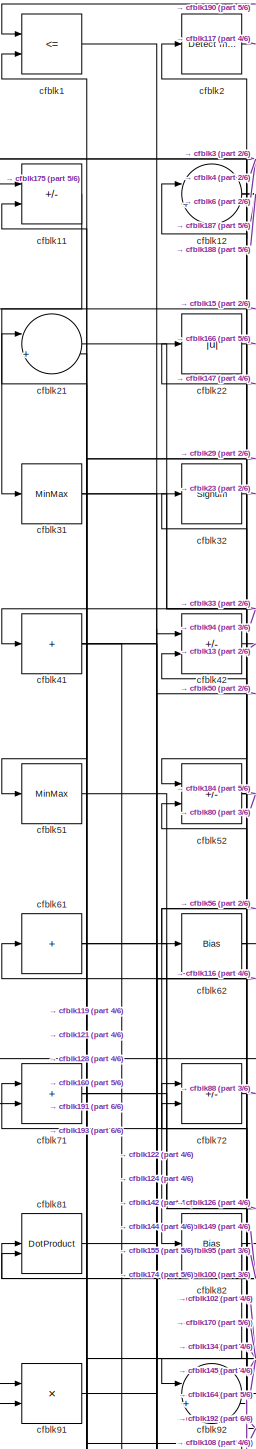
[diagram: root canvas - part 1/6, top left region]
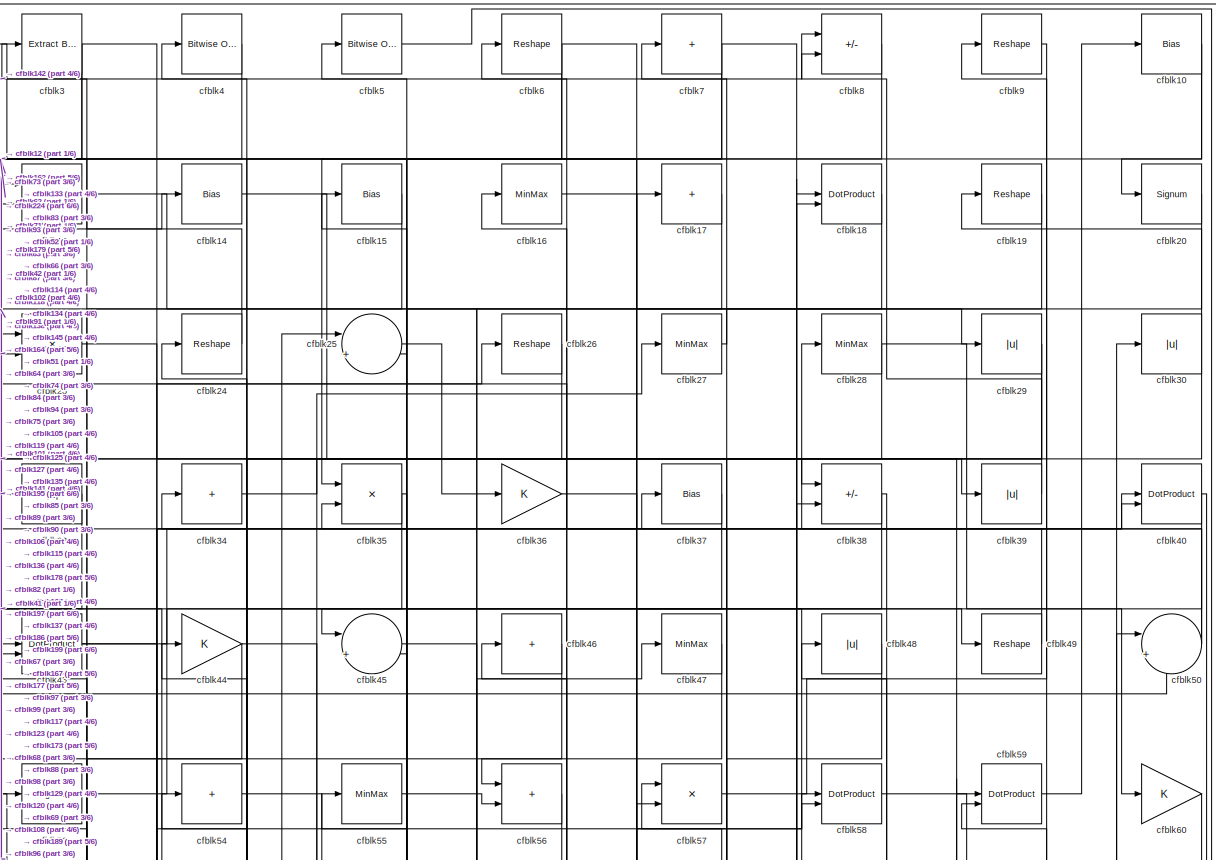
[diagram: root canvas - part 2/6, full width, top band]
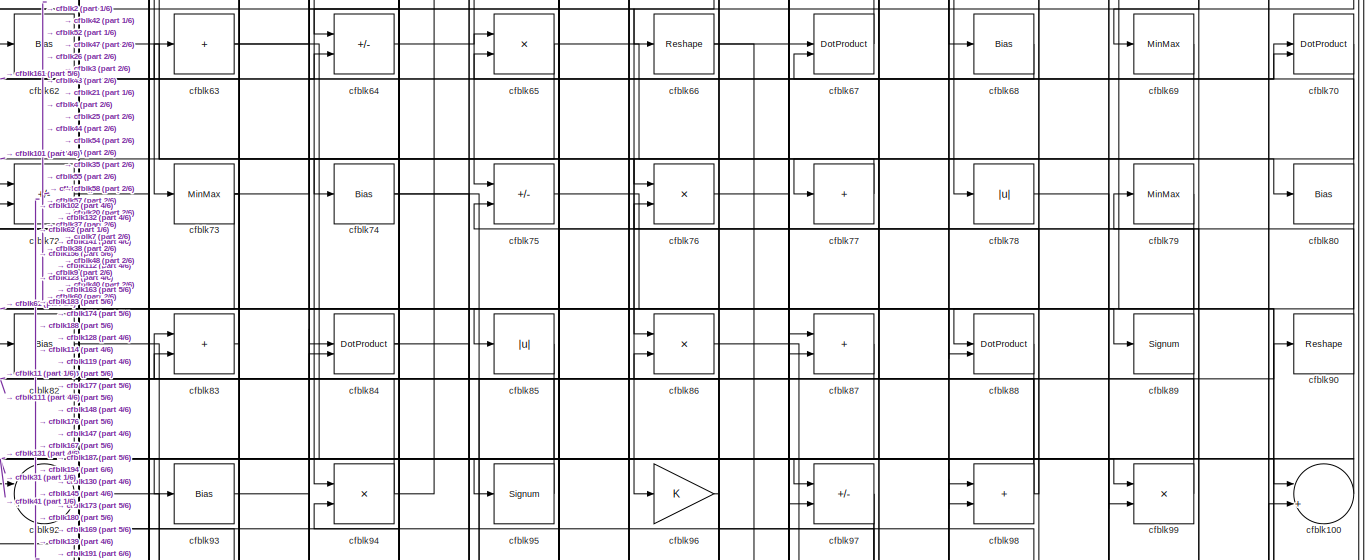
[diagram: root canvas - part 3/6, full width, middle band]
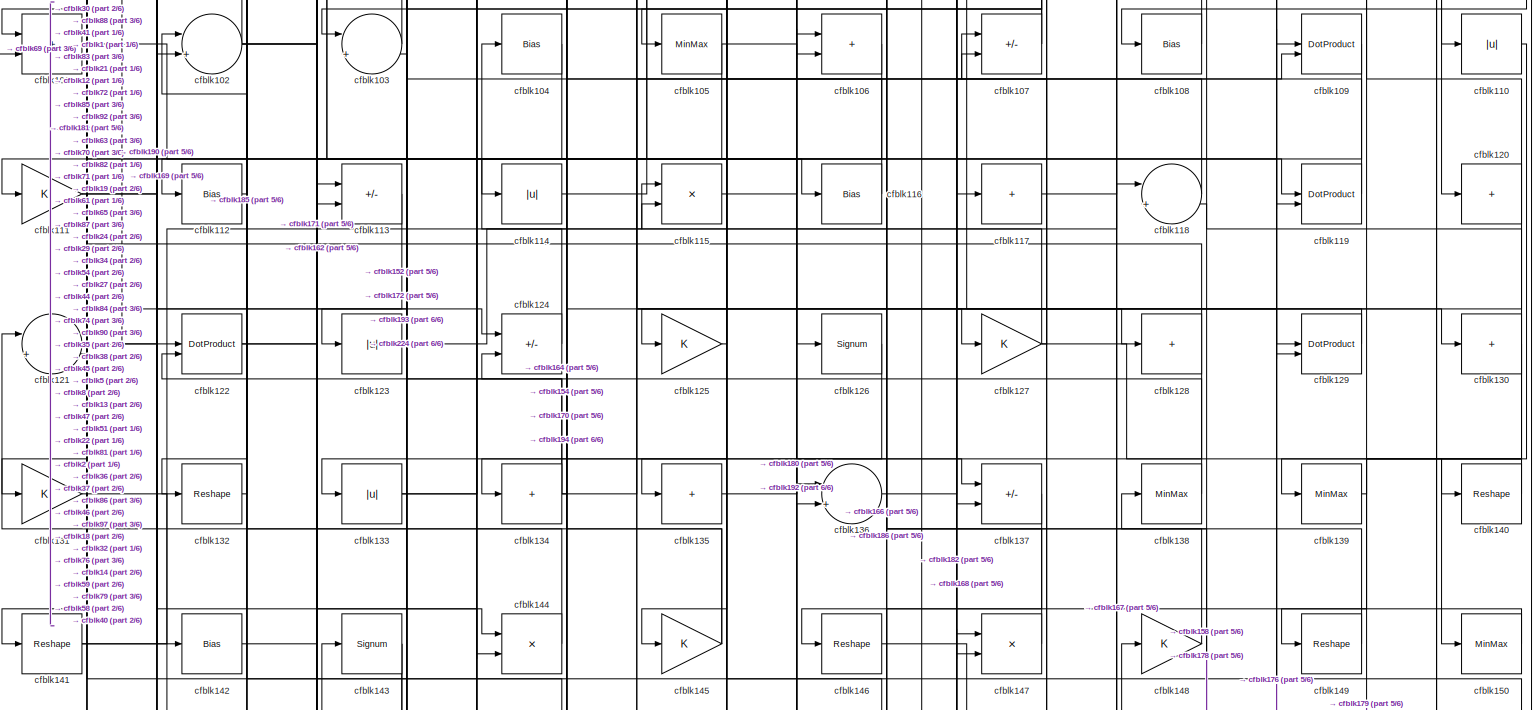
[diagram: root canvas - part 4/6, full width, middle band]
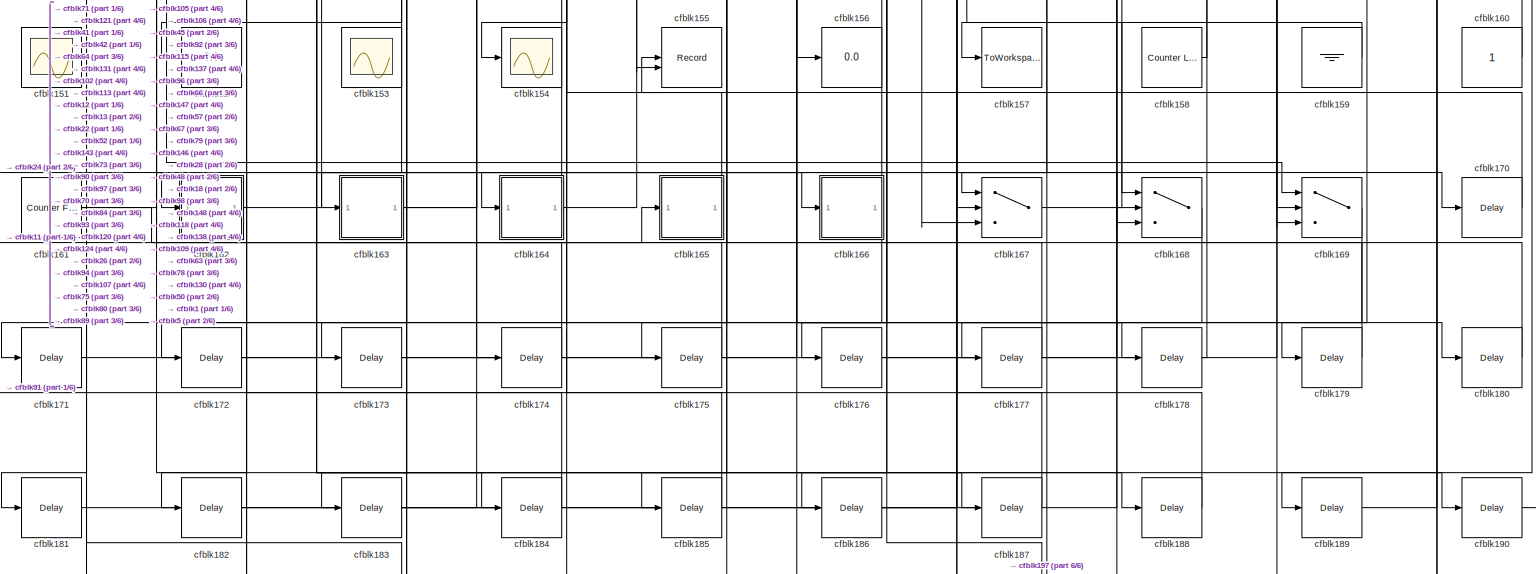
[diagram: root canvas - part 5/6, full width, bottom band]
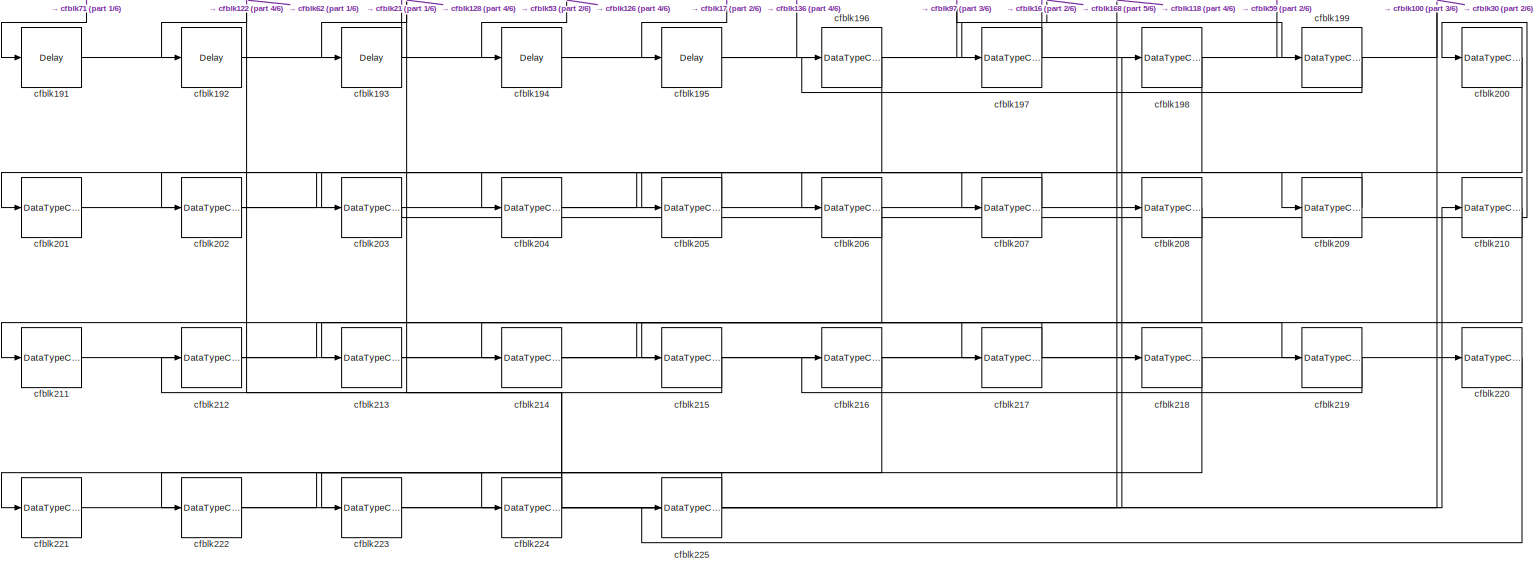
[diagram: root canvas - part 6/6, full width, bottom band]
MODEL slx_ad679ab97dcf
KIND model
CONFIG AbsTol = auto
CONFIG EnableMultiTasking = off
CONFIG FixedStep = auto
CONFIG MaxStep = auto
CONFIG MinStep = auto
CONFIG RelTol = 1e-3
CONFIG SampleTimeConstraint = Unconstrained
CONFIG SolverName = VariableStepAuto
CONFIG StartTime = 0.0
CONFIG StopTime = 10.0
BLOCK [RelationalOperator] cfblk1
  InputSameDT = off
  Operator = <=
  OutDataTypeStr = boolean
BLOCK [Bias] cfblk10
  Bias = 0.0
  SaturateOnIntegerOverflow = off
BLOCK [Sum] cfblk100
  Inputs = |++
BLOCK [Sum] cfblk101
  IconShape = rectangular
BLOCK [Sum] cfblk102
  Inputs = |++
BLOCK [Sum] cfblk103
  Inputs = |++
BLOCK [Bias] cfblk104
  Bias = 0.0
  SaturateOnIntegerOverflow = off
BLOCK [MinMax] cfblk105
BLOCK [Sum] cfblk106
  IconShape = rectangular
BLOCK [Sum] cfblk107
  IconShape = rectangular
  Inputs = +-
BLOCK [Bias] cfblk108
  Bias = 0.0
  SaturateOnIntegerOverflow = off
BLOCK [DotProduct] cfblk109
  OutDataTypeStr = Inherit: Inherit via internal rule
BLOCK [Sum] cfblk11
  IconShape = rectangular
  Inputs = +-
BLOCK [Abs] cfblk110
  SaturateOnIntegerOverflow = off
BLOCK [Gain] cfblk111
BLOCK [Bias] cfblk112
  Bias = 0.0
  SaturateOnIntegerOverflow = off
BLOCK [Sum] cfblk113
  IconShape = rectangular
  Inputs = +-
BLOCK [Abs] cfblk114
  SaturateOnIntegerOverflow = off
BLOCK [Product] cfblk115
  Inputs = */
  RndMeth = Zero
  SaturateOnIntegerOverflow = on
BLOCK [Bias] cfblk116
  Bias = 0.0
  SaturateOnIntegerOverflow = off
BLOCK [Sum] cfblk117
  IconShape = rectangular
  Inputs = +
BLOCK [Sum] cfblk118
  Inputs = |++
BLOCK [DotProduct] cfblk119
  OutDataTypeStr = Inherit: Inherit via internal rule
BLOCK [Sum] cfblk12
  Inputs = |++
BLOCK [Sum] cfblk120
  IconShape = rectangular
  Inputs = +
BLOCK [Sum] cfblk121
  Inputs = |++
BLOCK [DotProduct] cfblk122
  OutDataTypeStr = Inherit: Inherit via internal rule
BLOCK [Abs] cfblk123
  SaturateOnIntegerOverflow = off
BLOCK [Sum] cfblk124
  IconShape = rectangular
  Inputs = +-
BLOCK [Gain] cfblk125
BLOCK [Signum] cfblk126
BLOCK [Gain] cfblk127
BLOCK [Sum] cfblk128
  IconShape = rectangular
  Inputs = +
BLOCK [DotProduct] cfblk129
  OutDataTypeStr = Inherit: Inherit via internal rule
BLOCK [Product] cfblk13
  Inputs = */
  RndMeth = Zero
  SaturateOnIntegerOverflow = on
BLOCK [Sum] cfblk130
  IconShape = rectangular
  Inputs = +
BLOCK [Gain] cfblk131
BLOCK [Reshape] cfblk132
BLOCK [Abs] cfblk133
  SaturateOnIntegerOverflow = off
BLOCK [Sum] cfblk134
  IconShape = rectangular
  Inputs = +
BLOCK [Sum] cfblk135
  IconShape = rectangular
  Inputs = +
BLOCK [Sum] cfblk136
  Inputs = |++
BLOCK [Sum] cfblk137
  IconShape = rectangular
  Inputs = +-
BLOCK [MinMax] cfblk138
BLOCK [MinMax] cfblk139
BLOCK [Bias] cfblk14
  Bias = 0.0
  SaturateOnIntegerOverflow = off
BLOCK [Reshape] cfblk140
BLOCK [Reshape] cfblk141
BLOCK [Bias] cfblk142
  Bias = 0.0
  SaturateOnIntegerOverflow = off
BLOCK [Signum] cfblk143
BLOCK [Product] cfblk144
  Inputs = */
  RndMeth = Zero
  SaturateOnIntegerOverflow = on
BLOCK [Gain] cfblk145
BLOCK [Reshape] cfblk146
BLOCK [Product] cfblk147
  Inputs = */
  RndMeth = Zero
  SaturateOnIntegerOverflow = on
BLOCK [Gain] cfblk148
BLOCK [Reshape] cfblk149
BLOCK [Bias] cfblk15
  Bias = 0.0
  SaturateOnIntegerOverflow = off
BLOCK [MinMax] cfblk150
BLOCK [Scope] cfblk151
  Floating = on
  NumInputPorts = 1
  ScopeSpecificationString = Simulink.scopes.TimeScopeBlockCfg('CurrentConfiguration', extmgr.ConfigurationSet(extmgr.Configuration('Core','General UI',true,'FigureColor',[0.156862745098039 0.156862745098039 0.156862745098039]),extmgr.Configuration('Core','Source UI',true),extmgr.Configuration('Sources','WiredSimulink',true,'DataLoggingVariableName','ScopeData1','DataLoggingSaveFormat','StructureWithTime','DataLoggingLimitDat...<+2713ch>
BLOCK [Display] cfblk152
  Decimation = 1
BLOCK [Scope] cfblk153
  Floating = on
  NumInputPorts = 1
  ScopeSpecificationString = Simulink.scopes.TimeScopeBlockCfg('CurrentConfiguration', extmgr.ConfigurationSet(extmgr.Configuration('Core','General UI',true,'FigureColor',[0.156862745098039 0.156862745098039 0.156862745098039]),extmgr.Configuration('Core','Source UI',true),extmgr.Configuration('Sources','WiredSimulink',true,'DataLoggingVariableName','ScopeData1','DataLoggingSaveFormat','StructureWithTime','DataLoggingLimitDat...<+2713ch>
BLOCK [Scope] cfblk154
  Floating = off
  NumInputPorts = 1
  ScopeSpecificationString = Simulink.scopes.TimeScopeBlockCfg('CurrentConfiguration', extmgr.ConfigurationSet(extmgr.Configuration('Core','General UI',true),extmgr.Configuration('Core','Source UI',true),extmgr.Configuration('Sources','WiredSimulink',true,'DataLoggingVariableName','ScopeData2','DataLoggingSaveFormat','Array','DataLoggingLimitDataPoints',true,'DataLoggingDecimation','1'),extmgr.Configuration('Visuals','Time Do...<+868ch>
BLOCK [Record] cfblk155
  CompatibilityTag = XY
  FileSettingsInternal = {"entries":[{"content":{"excelSettings":{"content":{},"type":"Streamout.ExcelSettings"}},"type":"Streamout.FileSettingStorage","uuid":""}],"packageUris":["http:\/\/schema.mathworks.com\/mf0\/streamout_blocks\/R2020a"],"version":"1.0"}
  Layout = [1 1]
  SignalsInternal = {"entries":[{"content":{"signals":[{"content":{"blockPath":[],"dimensions":[1],"domain":"","lineColor":"#a2142f","plots":[1],"port":1,"signalID":3838,"signalName":"XY Graph:1"},"type":"RecordBlkView.Signal","uuid":""},{"content":{"blockPath":[],"dimensions":[1],"domain":"","lineColor":"#139fff","plots":[1],"port":2,"signalID":3841,"signalName":"XY Graph:2"},"type":"RecordBlkView.Signal","uuid":""}...<+146ch>
  VisualizationBindings = {"xyplotplugin":{"info":[{"series":[{"bindingParametersList":[{"parameter":"X-Axis","signalID":3838,"signalName":"XY Graph:1"},{"parameter":"Y-Axis","signalID":3841,"signalName":"XY Graph:2"}],"seriesID":10623}],"subplotID":1}]}}
  st = -1
BLOCK [Display] cfblk156
  Decimation = 1
BLOCK [ToWorkspace] cfblk157
  MaxDataPoints = inf
  SampleTime = -1
  SaveFormat = Timeseries
  VariableName = simout
BLOCK [Reference] cfblk158  REF=hdlsllib/Sources/Counter
Limited
  SourceBlock = hdlsllib/Sources/Counter\nLimited
  SourceType = Counter Limited
BLOCK [Ground] cfblk159
BLOCK [MinMax] cfblk16
BLOCK [Constant] cfblk160
  SampleTime = -1
BLOCK [Reference] cfblk161  REF=hdlsllib/Sources/Counter
Free-Running
  SourceBlock = hdlsllib/Sources/Counter\nFree-Running
  SourceType = Counter Free-Running
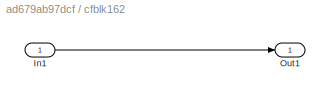
BLOCK [SubSystem] cfblk162
  LibrarySourceBlock = hdlsllib/Ports &\nSubsystems/Subsystem
BLOCK [Inport] cfblk162/In1
BLOCK [Outport] cfblk162/Out1
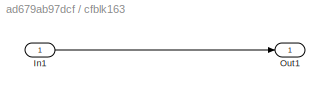
BLOCK [SubSystem] cfblk163
  LibrarySourceBlock = hdlsllib/Ports &\nSubsystems/Subsystem
BLOCK [Inport] cfblk163/In1
BLOCK [Outport] cfblk163/Out1
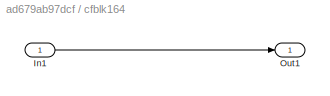
BLOCK [SubSystem] cfblk164
  LibrarySourceBlock = hdlsllib/Ports &\nSubsystems/Subsystem
BLOCK [Inport] cfblk164/In1
BLOCK [Outport] cfblk164/Out1
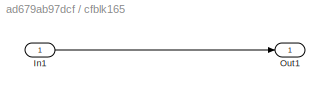
BLOCK [SubSystem] cfblk165
  LibrarySourceBlock = hdlsllib/Ports &\nSubsystems/Subsystem
BLOCK [Inport] cfblk165/In1
BLOCK [Outport] cfblk165/Out1
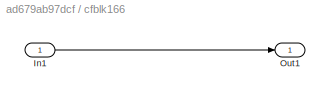
BLOCK [SubSystem] cfblk166
  LibrarySourceBlock = hdlsllib/Ports &\nSubsystems/Subsystem
BLOCK [Inport] cfblk166/In1
BLOCK [Outport] cfblk166/Out1
BLOCK [Switch] cfblk167
  InputSameDT = off
  SaturateOnIntegerOverflow = off
BLOCK [Switch] cfblk168
  InputSameDT = off
  SaturateOnIntegerOverflow = off
BLOCK [Switch] cfblk169
  InputSameDT = off
  SaturateOnIntegerOverflow = off
BLOCK [Sum] cfblk17
  IconShape = rectangular
  Inputs = +
BLOCK [Delay] cfblk170
  InputPortMap = u0
  SampleTime = 1
BLOCK [Delay] cfblk171
  InputPortMap = u0
  SampleTime = 1
BLOCK [Delay] cfblk172
  InputPortMap = u0
  SampleTime = 1
BLOCK [Delay] cfblk173
  InputPortMap = u0
  SampleTime = 1
BLOCK [Delay] cfblk174
  InputPortMap = u0
  SampleTime = 1
BLOCK [Delay] cfblk175
  InputPortMap = u0
  SampleTime = 1
BLOCK [Delay] cfblk176
  InputPortMap = u0
  SampleTime = 1
BLOCK [Delay] cfblk177
  InputPortMap = u0
  SampleTime = 1
BLOCK [Delay] cfblk178
  InputPortMap = u0
  SampleTime = 1
BLOCK [Delay] cfblk179
  InputPortMap = u0
  SampleTime = 1
BLOCK [DotProduct] cfblk18
  OutDataTypeStr = Inherit: Inherit via internal rule
BLOCK [Delay] cfblk180
  InputPortMap = u0
  SampleTime = 1
BLOCK [Delay] cfblk181
  InputPortMap = u0
  SampleTime = 1
BLOCK [Delay] cfblk182
  InputPortMap = u0
  SampleTime = 1
BLOCK [Delay] cfblk183
  InputPortMap = u0
  SampleTime = 1
BLOCK [Delay] cfblk184
  InputPortMap = u0
  SampleTime = 1
BLOCK [Delay] cfblk185
  InputPortMap = u0
  SampleTime = 1
BLOCK [Delay] cfblk186
  InputPortMap = u0
  SampleTime = 1
BLOCK [Delay] cfblk187
  InputPortMap = u0
  SampleTime = 1
BLOCK [Delay] cfblk188
  InputPortMap = u0
  SampleTime = 1
BLOCK [Delay] cfblk189
  InputPortMap = u0
  SampleTime = 1
BLOCK [Reshape] cfblk19
BLOCK [Delay] cfblk190
  InputPortMap = u0
  SampleTime = 1
BLOCK [Delay] cfblk191
  InputPortMap = u0
  SampleTime = 1
BLOCK [Delay] cfblk192
  InputPortMap = u0
  SampleTime = 1
BLOCK [Delay] cfblk193
  InputPortMap = u0
  SampleTime = 1
BLOCK [Delay] cfblk194
  InputPortMap = u0
  SampleTime = 1
BLOCK [Delay] cfblk195
  InputPortMap = u0
  SampleTime = 1
BLOCK [DataTypeConversion] cfblk196
  RndMeth = Floor
  SaturateOnIntegerOverflow = off
BLOCK [DataTypeConversion] cfblk197
  OutDataTypeStr = uint8
  RndMeth = Floor
  SaturateOnIntegerOverflow = off
BLOCK [DataTypeConversion] cfblk198
  RndMeth = Floor
  SaturateOnIntegerOverflow = off
BLOCK [DataTypeConversion] cfblk199
  OutDataTypeStr = uint8
  RndMeth = Floor
  SaturateOnIntegerOverflow = off
BLOCK [Reference] cfblk2  REF=simulink/Logic and Bit
Operations/Detect
Increase
  LibrarySourceBlock = hdlsllib/Logic and Bit\nOperations/Detect\nIncrease
  SourceBlock = simulink/Logic and Bit\nOperations/Detect\nIncrease
  SourceType = Detect Increase
BLOCK [Signum] cfblk20
BLOCK [DataTypeConversion] cfblk200
  RndMeth = Floor
  SaturateOnIntegerOverflow = off
BLOCK [DataTypeConversion] cfblk201
  OutDataTypeStr = uint8
  RndMeth = Floor
  SaturateOnIntegerOverflow = off
BLOCK [DataTypeConversion] cfblk202
  RndMeth = Floor
  SaturateOnIntegerOverflow = off
BLOCK [DataTypeConversion] cfblk203
  OutDataTypeStr = uint8
  RndMeth = Floor
  SaturateOnIntegerOverflow = off
BLOCK [DataTypeConversion] cfblk204
  RndMeth = Floor
  SaturateOnIntegerOverflow = off
BLOCK [DataTypeConversion] cfblk205
  OutDataTypeStr = uint8
  RndMeth = Floor
  SaturateOnIntegerOverflow = off
BLOCK [DataTypeConversion] cfblk206
  RndMeth = Floor
  SaturateOnIntegerOverflow = off
BLOCK [DataTypeConversion] cfblk207
  OutDataTypeStr = uint8
  RndMeth = Floor
  SaturateOnIntegerOverflow = off
BLOCK [DataTypeConversion] cfblk208
  RndMeth = Floor
  SaturateOnIntegerOverflow = off
BLOCK [DataTypeConversion] cfblk209
  OutDataTypeStr = uint8
  RndMeth = Floor
  SaturateOnIntegerOverflow = off
BLOCK [Sum] cfblk21
  Inputs = |++
BLOCK [DataTypeConversion] cfblk210
  RndMeth = Floor
  SaturateOnIntegerOverflow = off
BLOCK [DataTypeConversion] cfblk211
  OutDataTypeStr = uint8
  RndMeth = Floor
  SaturateOnIntegerOverflow = off
BLOCK [DataTypeConversion] cfblk212
  RndMeth = Floor
  SaturateOnIntegerOverflow = off
BLOCK [DataTypeConversion] cfblk213
  OutDataTypeStr = uint8
  RndMeth = Floor
  SaturateOnIntegerOverflow = off
BLOCK [DataTypeConversion] cfblk214
  RndMeth = Floor
  SaturateOnIntegerOverflow = off
BLOCK [DataTypeConversion] cfblk215
  OutDataTypeStr = uint8
  RndMeth = Floor
  SaturateOnIntegerOverflow = off
BLOCK [DataTypeConversion] cfblk216
  RndMeth = Floor
  SaturateOnIntegerOverflow = off
BLOCK [DataTypeConversion] cfblk217
  OutDataTypeStr = uint8
  RndMeth = Floor
  SaturateOnIntegerOverflow = off
BLOCK [DataTypeConversion] cfblk218
  RndMeth = Floor
  SaturateOnIntegerOverflow = off
BLOCK [DataTypeConversion] cfblk219
  OutDataTypeStr = uint8
  RndMeth = Floor
  SaturateOnIntegerOverflow = off
BLOCK [Abs] cfblk22
  SaturateOnIntegerOverflow = off
BLOCK [DataTypeConversion] cfblk220
  RndMeth = Floor
  SaturateOnIntegerOverflow = off
BLOCK [DataTypeConversion] cfblk221
  OutDataTypeStr = uint8
  RndMeth = Floor
  SaturateOnIntegerOverflow = off
BLOCK [DataTypeConversion] cfblk222
  RndMeth = Floor
  SaturateOnIntegerOverflow = off
BLOCK [DataTypeConversion] cfblk223
  OutDataTypeStr = uint8
  RndMeth = Floor
  SaturateOnIntegerOverflow = off
BLOCK [DataTypeConversion] cfblk224
  RndMeth = Floor
  SaturateOnIntegerOverflow = off
BLOCK [DataTypeConversion] cfblk225
  OutDataTypeStr = uint8
  RndMeth = Floor
  SaturateOnIntegerOverflow = off
BLOCK [Product] cfblk23
  Inputs = */
  RndMeth = Zero
  SaturateOnIntegerOverflow = on
BLOCK [Reshape] cfblk24
BLOCK [Sum] cfblk25
  Inputs = |++
BLOCK [Reshape] cfblk26
BLOCK [MinMax] cfblk27
BLOCK [MinMax] cfblk28
BLOCK [Abs] cfblk29
  SaturateOnIntegerOverflow = off
BLOCK [Reference] cfblk3  REF=simulink/Logic and Bit
Operations/Extract Bits
  LibrarySourceBlock = hdlsllib/Logic and Bit\nOperations/Extract Bits
  SourceBlock = simulink/Logic and Bit\nOperations/Extract Bits
  SourceType = Extract Bits
BLOCK [Abs] cfblk30
  SaturateOnIntegerOverflow = off
BLOCK [MinMax] cfblk31
BLOCK [Signum] cfblk32
BLOCK [Abs] cfblk33
  SaturateOnIntegerOverflow = off
BLOCK [Sum] cfblk34
  IconShape = rectangular
  Inputs = +
BLOCK [Product] cfblk35
  Inputs = */
  RndMeth = Zero
  SaturateOnIntegerOverflow = on
BLOCK [Gain] cfblk36
BLOCK [Bias] cfblk37
  Bias = 0.0
  SaturateOnIntegerOverflow = off
BLOCK [Sum] cfblk38
  IconShape = rectangular
  Inputs = +-
BLOCK [Abs] cfblk39
  SaturateOnIntegerOverflow = off
BLOCK [Reference] cfblk4  REF=simulink/Logic and Bit
Operations/Bitwise
Operator
  LibrarySourceBlock = hdlsllib/Logic and Bit\nOperations/Bitwise\nOperator
  SourceBlock = simulink/Logic and Bit\nOperations/Bitwise\nOperator
  SourceType = Bitwise Operator
BLOCK [DotProduct] cfblk40
  OutDataTypeStr = Inherit: Inherit via internal rule
BLOCK [Sum] cfblk41
  IconShape = rectangular
  Inputs = +
BLOCK [Sum] cfblk42
  IconShape = rectangular
  Inputs = +-
BLOCK [DotProduct] cfblk43
  OutDataTypeStr = Inherit: Inherit via internal rule
BLOCK [Gain] cfblk44
BLOCK [Sum] cfblk45
  Inputs = |++
BLOCK [Sum] cfblk46
  IconShape = rectangular
  Inputs = +
BLOCK [MinMax] cfblk47
BLOCK [Abs] cfblk48
  SaturateOnIntegerOverflow = off
BLOCK [Reshape] cfblk49
BLOCK [Reference] cfblk5  REF=simulink/Logic and Bit
Operations/Bitwise
Operator
  LibrarySourceBlock = hdlsllib/Logic and Bit\nOperations/Bitwise\nOperator
  SourceBlock = simulink/Logic and Bit\nOperations/Bitwise\nOperator
  SourceType = Bitwise Operator
BLOCK [Sum] cfblk50
  Inputs = |++
BLOCK [MinMax] cfblk51
BLOCK [Sum] cfblk52
  IconShape = rectangular
  Inputs = +-
BLOCK [Signum] cfblk53
BLOCK [Sum] cfblk54
  IconShape = rectangular
  Inputs = +
BLOCK [MinMax] cfblk55
BLOCK [Sum] cfblk56
  IconShape = rectangular
BLOCK [Product] cfblk57
  Inputs = */
  RndMeth = Zero
  SaturateOnIntegerOverflow = on
BLOCK [DotProduct] cfblk58
  OutDataTypeStr = Inherit: Inherit via internal rule
BLOCK [DotProduct] cfblk59
  OutDataTypeStr = Inherit: Inherit via internal rule
BLOCK [Reshape] cfblk6
BLOCK [Gain] cfblk60
BLOCK [Sum] cfblk61
  IconShape = rectangular
  Inputs = +
BLOCK [Bias] cfblk62
  Bias = 0.0
  SaturateOnIntegerOverflow = off
BLOCK [Sum] cfblk63
  IconShape = rectangular
  Inputs = +
BLOCK [Sum] cfblk64
  IconShape = rectangular
  Inputs = +-
BLOCK [Product] cfblk65
  Inputs = */
  RndMeth = Zero
  SaturateOnIntegerOverflow = on
BLOCK [Reshape] cfblk66
BLOCK [DotProduct] cfblk67
  OutDataTypeStr = Inherit: Inherit via internal rule
BLOCK [Bias] cfblk68
  Bias = 0.0
  SaturateOnIntegerOverflow = off
BLOCK [MinMax] cfblk69
BLOCK [Sum] cfblk7
  IconShape = rectangular
  Inputs = +
BLOCK [DotProduct] cfblk70
  OutDataTypeStr = Inherit: Inherit via internal rule
BLOCK [Sum] cfblk71
  IconShape = rectangular
BLOCK [Sum] cfblk72
  IconShape = rectangular
  Inputs = +-
BLOCK [MinMax] cfblk73
BLOCK [Bias] cfblk74
  Bias = 0.0
  SaturateOnIntegerOverflow = off
BLOCK [Sum] cfblk75
  IconShape = rectangular
  Inputs = +-
BLOCK [Product] cfblk76
  Inputs = */
  RndMeth = Zero
  SaturateOnIntegerOverflow = on
BLOCK [Sum] cfblk77
  IconShape = rectangular
  Inputs = +
BLOCK [Abs] cfblk78
  SaturateOnIntegerOverflow = off
BLOCK [MinMax] cfblk79
BLOCK [Sum] cfblk8
  IconShape = rectangular
  Inputs = +-
BLOCK [Bias] cfblk80
  Bias = 0.0
  SaturateOnIntegerOverflow = off
BLOCK [DotProduct] cfblk81
  OutDataTypeStr = Inherit: Inherit via internal rule
BLOCK [Bias] cfblk82
  Bias = 0.0
  SaturateOnIntegerOverflow = off
BLOCK [Sum] cfblk83
  IconShape = rectangular
BLOCK [DotProduct] cfblk84
  OutDataTypeStr = Inherit: Inherit via internal rule
BLOCK [Abs] cfblk85
  SaturateOnIntegerOverflow = off
BLOCK [Product] cfblk86
  Inputs = */
  RndMeth = Zero
  SaturateOnIntegerOverflow = on
BLOCK [Sum] cfblk87
  IconShape = rectangular
BLOCK [DotProduct] cfblk88
  OutDataTypeStr = Inherit: Inherit via internal rule
BLOCK [Signum] cfblk89
BLOCK [Reshape] cfblk9
BLOCK [Reshape] cfblk90
BLOCK [Product] cfblk91
  Inputs = */
  RndMeth = Zero
  SaturateOnIntegerOverflow = on
BLOCK [Sum] cfblk92
  Inputs = |++
BLOCK [Bias] cfblk93
  Bias = 0.0
  SaturateOnIntegerOverflow = off
BLOCK [Product] cfblk94
  Inputs = */
  RndMeth = Zero
  SaturateOnIntegerOverflow = on
BLOCK [Signum] cfblk95
BLOCK [Gain] cfblk96
BLOCK [Sum] cfblk97
  IconShape = rectangular
  Inputs = +-
BLOCK [Sum] cfblk98
  IconShape = rectangular
BLOCK [Product] cfblk99
  Inputs = */
  RndMeth = Zero
  SaturateOnIntegerOverflow = on
LINE cfblk100:1 -> cfblk95:1
LINE cfblk101:1 -> cfblk116:1
NET cfblk102:1 -> cfblk14:1, cfblk168:3, cfblk21:1, cfblk70:2
LINE cfblk103:1 -> cfblk71:1
LINE cfblk104:1 -> cfblk113:2
NET cfblk105:1 -> cfblk180:1, cfblk181:1
LINE cfblk106:1 -> cfblk134:1
NET cfblk107:1 -> cfblk103:1, cfblk46:1
LINE cfblk108:1 -> cfblk32:1
LINE cfblk109:1 -> cfblk111:1
NET cfblk10:1 -> cfblk20:1, cfblk25:2
LINE cfblk110:1 -> cfblk140:1
NET cfblk111:1 -> cfblk102:2, cfblk83:1
LINE cfblk112:1 -> cfblk12:1
LINE cfblk113:1 -> cfblk141:1
LINE cfblk114:1 -> cfblk90:1
LINE cfblk115:1 -> cfblk47:1
LINE cfblk116:1 -> cfblk61:1
LINE cfblk117:1 -> cfblk18:1
LINE cfblk118:1 -> cfblk54:1
LINE cfblk119:1 -> cfblk5:1
LINE cfblk11:1 -> cfblk31:1
NET cfblk120:1 -> cfblk154:1, cfblk59:2
LINE cfblk121:1 -> cfblk190:1
NET cfblk122:1 -> cfblk115:1, cfblk144:1
LINE cfblk123:1 -> cfblk38:2
LINE cfblk124:1 -> cfblk104:1
LINE cfblk125:1 -> cfblk45:2
LINE cfblk126:1 -> cfblk194:1
NET cfblk127:1 -> cfblk107:2, cfblk150:1, cfblk35:2
NET cfblk128:1 -> cfblk193:1, cfblk81:2
LINE cfblk129:1 -> cfblk125:1
NET cfblk12:1 -> cfblk187:1, cfblk188:1
NET cfblk130:1 -> cfblk149:1, cfblk179:1, cfblk76:2
LINE cfblk131:1 -> cfblk169:1
LINE cfblk132:1 -> cfblk92:2
NET cfblk133:1 -> cfblk40:2, cfblk58:1
NET cfblk134:1 -> cfblk103:2, cfblk24:1, cfblk27:1, cfblk72:2
LINE cfblk135:1 -> cfblk137:1
LINE cfblk136:1 -> cfblk109:2
LINE cfblk137:1 -> cfblk186:1
LINE cfblk138:1 -> cfblk34:1
LINE cfblk139:1 -> cfblk79:1
LINE cfblk13:1 -> cfblk136:1
LINE cfblk140:1 -> cfblk139:1
NET cfblk141:1 -> cfblk33:1, cfblk63:1
LINE cfblk142:1 -> cfblk8:2
NET cfblk143:1 -> cfblk152:1, cfblk172:1
LINE cfblk144:1 -> cfblk121:1
NET cfblk145:1 -> cfblk44:1, cfblk72:1
LINE cfblk146:1 -> cfblk168:1
LINE cfblk147:1 -> cfblk22:1
LINE cfblk148:1 -> cfblk86:2
LINE cfblk149:1 -> cfblk81:1
LINE cfblk14:1 -> cfblk129:1
LINE cfblk150:1 -> cfblk146:1
LINE cfblk158:1 -> cfblk138:1
LINE cfblk159:1 -> cfblk157:1
LINE cfblk15:1 -> cfblk91:2
LINE cfblk160:1 -> cfblk1:2
NET cfblk161:1 -> cfblk165:1, cfblk64:2
LINE cfblk162/In1:1 -> cfblk162/Out1:1
LINE cfblk162:1 -> cfblk143:1
LINE cfblk163/In1:1 -> cfblk163/Out1:1
NET cfblk163:1 -> cfblk70:1, cfblk84:1
LINE cfblk164/In1:1 -> cfblk164/Out1:1
NET cfblk164:1 -> cfblk107:1, cfblk52:2
LINE cfblk165/In1:1 -> cfblk165/Out1:1
LINE cfblk165:1 -> cfblk155:1
LINE cfblk166/In1:1 -> cfblk166/Out1:1
NET cfblk166:1 -> cfblk115:2, cfblk182:1
LINE cfblk167:1 -> cfblk148:1
LINE cfblk168:1 -> cfblk197:1
LINE cfblk169:1 -> cfblk171:1
LINE cfblk16:1 -> cfblk199:1
LINE cfblk170:1 -> cfblk124:2
LINE cfblk171:1 -> cfblk113:1
LINE cfblk172:1 -> cfblk106:1
LINE cfblk173:1 -> cfblk18:2
LINE cfblk174:1 -> cfblk42:1
LINE cfblk175:1 -> cfblk11:1
LINE cfblk176:1 -> cfblk109:1
LINE cfblk177:1 -> cfblk75:2
LINE cfblk178:1 -> cfblk118:2
LINE cfblk179:1 -> cfblk13:1
LINE cfblk17:1 -> cfblk195:1
LINE cfblk180:1 -> cfblk98:1
LINE cfblk181:1 -> cfblk168:2
LINE cfblk182:1 -> cfblk147:1
LINE cfblk183:1 -> cfblk84:2
LINE cfblk184:1 -> cfblk91:1
LINE cfblk185:1 -> cfblk102:1
LINE cfblk186:1 -> cfblk57:2
LINE cfblk187:1 -> cfblk67:1
LINE cfblk188:1 -> cfblk94:2
LINE cfblk189:1 -> cfblk50:1
LINE cfblk18:1 -> cfblk106:2
LINE cfblk190:1 -> cfblk1:1
LINE cfblk191:1 -> cfblk100:2
LINE cfblk192:1 -> cfblk136:2
LINE cfblk193:1 -> cfblk21:2
LINE cfblk194:1 -> cfblk97:2
LINE cfblk195:1 -> cfblk59:1
LINE cfblk196:1 -> cfblk201:1
LINE cfblk197:1 -> cfblk16:1
LINE cfblk198:1 -> cfblk203:1
LINE cfblk199:1 -> cfblk196:1
LINE cfblk19:1 -> cfblk133:1
LINE cfblk1:1 -> cfblk124:1
LINE cfblk200:1 -> cfblk205:1
LINE cfblk201:1 -> cfblk198:1
LINE cfblk202:1 -> cfblk207:1
LINE cfblk203:1 -> cfblk200:1
LINE cfblk204:1 -> cfblk209:1
LINE cfblk205:1 -> cfblk202:1
LINE cfblk206:1 -> cfblk211:1
LINE cfblk207:1 -> cfblk204:1
LINE cfblk208:1 -> cfblk213:1
LINE cfblk209:1 -> cfblk206:1
LINE cfblk20:1 -> cfblk97:1
LINE cfblk210:1 -> cfblk215:1
LINE cfblk211:1 -> cfblk208:1
LINE cfblk212:1 -> cfblk217:1
LINE cfblk213:1 -> cfblk210:1
LINE cfblk214:1 -> cfblk219:1
LINE cfblk215:1 -> cfblk212:1
LINE cfblk216:1 -> cfblk221:1
LINE cfblk217:1 -> cfblk214:1
LINE cfblk218:1 -> cfblk223:1
LINE cfblk219:1 -> cfblk216:1
LINE cfblk21:1 -> cfblk94:1
LINE cfblk220:1 -> cfblk225:1
LINE cfblk221:1 -> cfblk218:1
LINE cfblk222:1 -> cfblk224:1
LINE cfblk223:1 -> cfblk220:1
NET cfblk224:1 -> cfblk118:1, cfblk122:2, cfblk30:1, cfblk53:1
LINE cfblk225:1 -> cfblk222:1
LINE cfblk22:1 -> cfblk166:1
LINE cfblk23:1 -> cfblk39:1
LINE cfblk24:1 -> cfblk162:1
LINE cfblk25:1 -> cfblk36:1
LINE cfblk26:1 -> cfblk164:1
LINE cfblk27:1 -> cfblk7:1
NET cfblk28:1 -> cfblk177:1, cfblk60:1
NET cfblk29:1 -> cfblk114:1, cfblk51:1
LINE cfblk2:1 -> cfblk117:1
NET cfblk30:1 -> cfblk101:1, cfblk9:1
NET cfblk31:1 -> cfblk78:1, cfblk98:2
LINE cfblk32:1 -> cfblk23:2
LINE cfblk33:1 -> cfblk41:1
LINE cfblk34:1 -> cfblk38:1
NET cfblk35:1 -> cfblk45:1, cfblk85:1
LINE cfblk36:1 -> cfblk129:2
LINE cfblk37:1 -> cfblk137:2
NET cfblk38:1 -> cfblk135:1, cfblk88:1
LINE cfblk39:1 -> cfblk8:1
NET cfblk3:1 -> cfblk12:2, cfblk52:1, cfblk87:2
NET cfblk40:1 -> cfblk108:1, cfblk74:1
NET cfblk41:1 -> cfblk100:1, cfblk122:1, cfblk170:1
LINE cfblk42:1 -> cfblk13:2
NET cfblk43:1 -> cfblk49:1, cfblk66:1
NET cfblk44:1 -> cfblk127:1, cfblk93:1
LINE cfblk45:1 -> cfblk178:1
LINE cfblk46:1 -> cfblk56:1
LINE cfblk47:1 -> cfblk73:1
LINE cfblk48:1 -> cfblk167:1
LINE cfblk49:1 -> cfblk23:1
LINE cfblk4:1 -> cfblk62:1
NET cfblk50:1 -> cfblk28:1, cfblk6:1
LINE cfblk51:1 -> cfblk126:1
NET cfblk52:1 -> cfblk184:1, cfblk80:1
LINE cfblk53:1 -> cfblk17:1
LINE cfblk54:1 -> cfblk75:1
LINE cfblk55:1 -> cfblk56:2
LINE cfblk56:1 -> cfblk82:1
LINE cfblk57:1 -> cfblk19:1
LINE cfblk58:1 -> cfblk120:1
LINE cfblk59:1 -> cfblk10:1
LINE cfblk5:1 -> cfblk189:1
LINE cfblk60:1 -> cfblk96:1
NET cfblk61:1 -> cfblk110:1, cfblk99:2
NET cfblk62:1 -> cfblk192:1, cfblk86:1
NET cfblk63:1 -> cfblk169:2, cfblk40:1
LINE cfblk64:1 -> cfblk65:1
NET cfblk65:1 -> cfblk123:1, cfblk87:1
NET cfblk66:1 -> cfblk167:3, cfblk58:2
LINE cfblk67:1 -> cfblk57:1
LINE cfblk68:1 -> cfblk67:2
LINE cfblk69:1 -> cfblk101:2
NET cfblk6:1 -> cfblk29:1, cfblk35:1, cfblk71:2
LINE cfblk70:1 -> cfblk77:1
NET cfblk71:1 -> cfblk144:2, cfblk155:2, cfblk191:1
LINE cfblk72:1 -> cfblk88:2
NET cfblk73:1 -> cfblk183:1, cfblk26:1, cfblk3:1, cfblk92:1
NET cfblk74:1 -> cfblk119:2, cfblk99:1
LINE cfblk75:1 -> cfblk89:1
LINE cfblk76:1 -> cfblk147:2
LINE cfblk77:1 -> cfblk76:1
LINE cfblk78:1 -> cfblk169:3
LINE cfblk79:1 -> cfblk167:2
NET cfblk7:1 -> cfblk43:2, cfblk64:1, cfblk68:1
NET cfblk80:1 -> cfblk185:1, cfblk65:2
LINE cfblk81:1 -> cfblk142:1
NET cfblk82:1 -> cfblk119:1, cfblk121:2
LINE cfblk83:1 -> cfblk43:1
NET cfblk84:1 -> cfblk128:1, cfblk4:1
LINE cfblk85:1 -> cfblk132:1
LINE cfblk86:1 -> cfblk130:1
LINE cfblk87:1 -> cfblk112:1
LINE cfblk88:1 -> cfblk131:1
NET cfblk89:1 -> cfblk15:1, cfblk175:1
LINE cfblk8:1 -> cfblk105:1
NET cfblk90:1 -> cfblk163:1, cfblk55:1
LINE cfblk91:1 -> cfblk50:2
LINE cfblk92:1 -> cfblk156:1
LINE cfblk93:1 -> cfblk174:1
NET cfblk94:1 -> cfblk25:1, cfblk2:1
LINE cfblk95:1 -> cfblk11:2
LINE cfblk96:1 -> cfblk176:1
NET cfblk97:1 -> cfblk145:1, cfblk173:1
NET cfblk98:1 -> cfblk42:2, cfblk48:1, cfblk83:2
LINE cfblk99:1 -> cfblk37:1
LINE cfblk9:1 -> cfblk69:1
note: NET lines group one-source signal fan-out (src -> all destinations, sorted); 1:1 wires keep LINE
